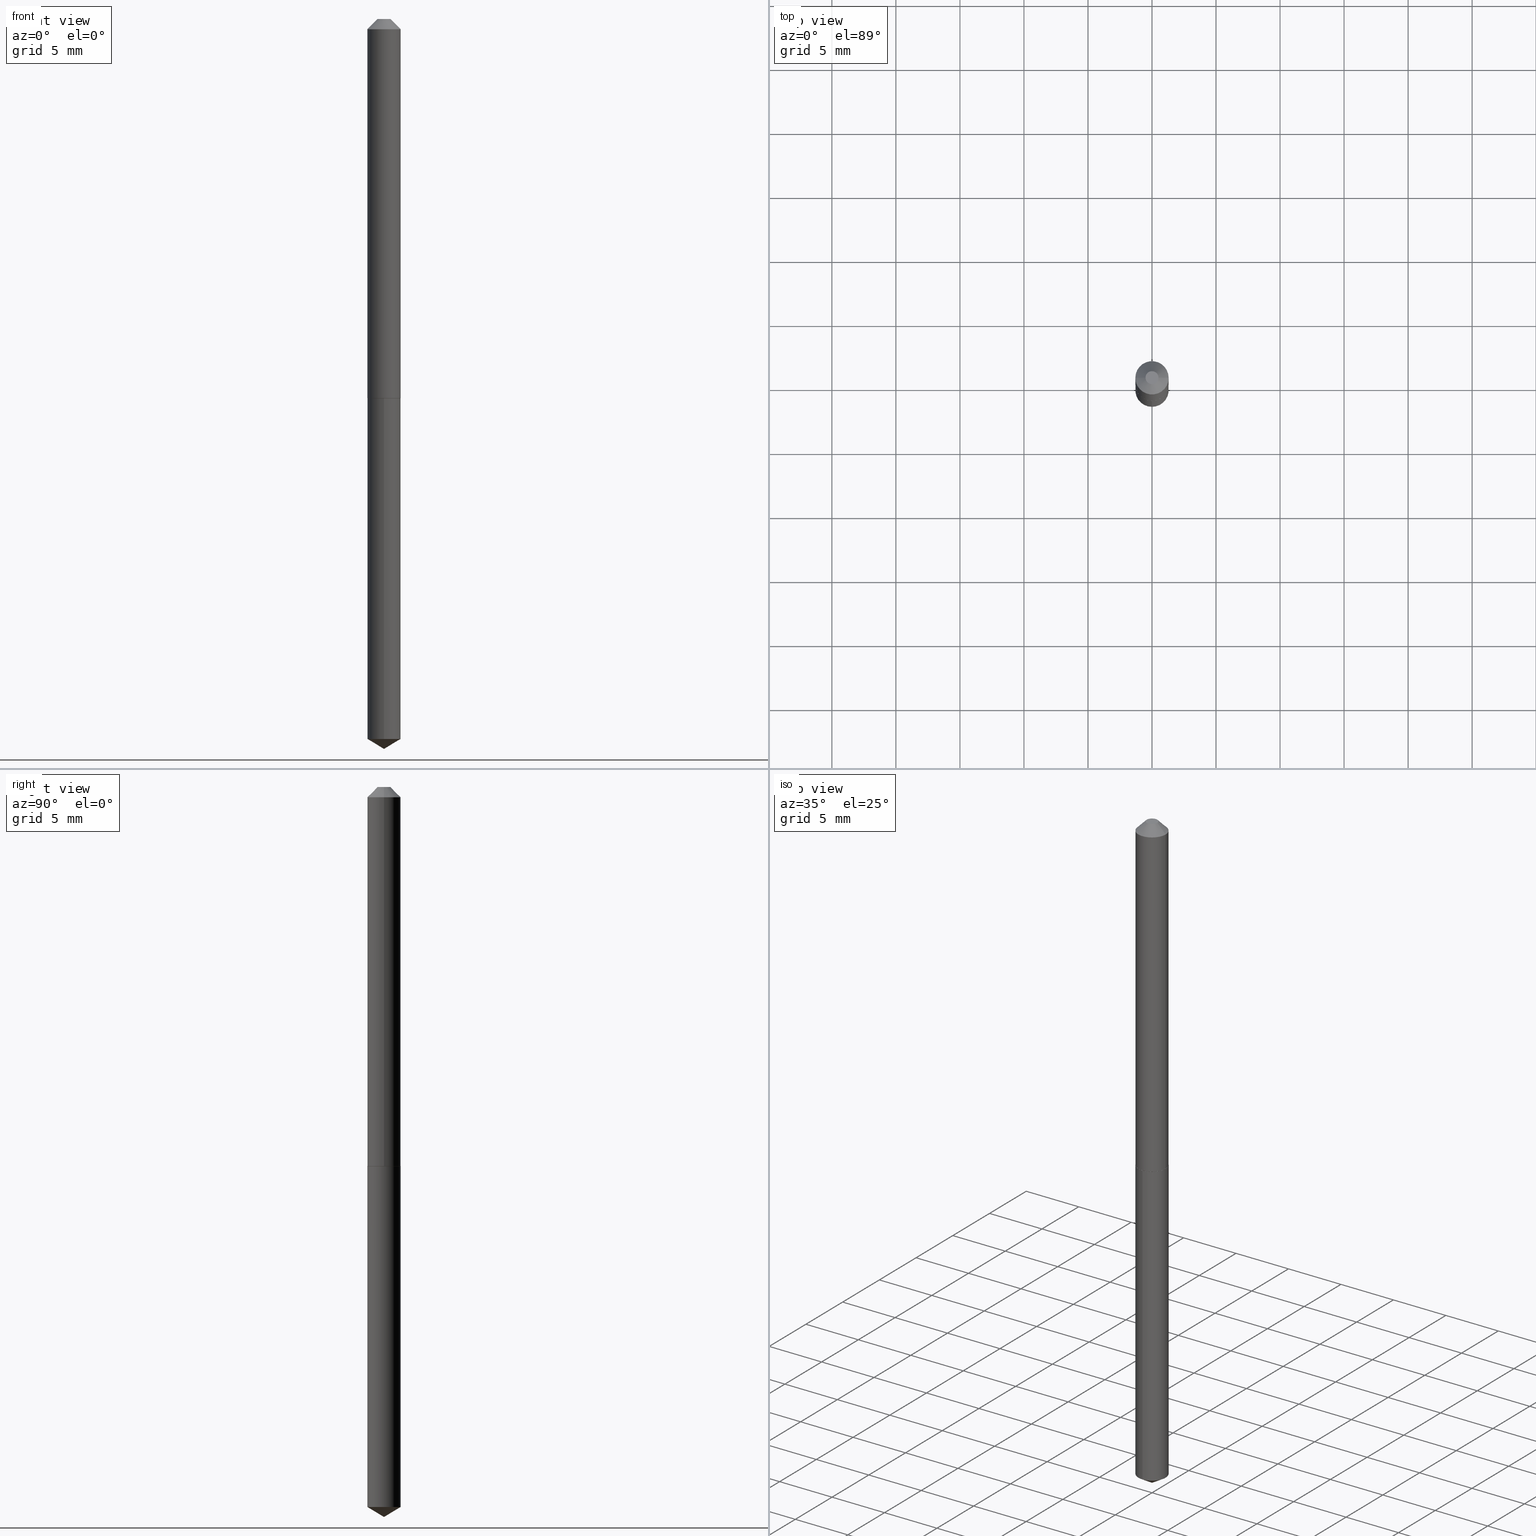
[diagram: canonical four-view strip — front | top / right | iso, engineering-drawing reading convention]
A machine part, canonical four-view strip (front | top / right | iso — engineering-drawing reading convention). The complete STEP part file that produces these views, byte-faithful:
ISO-10303-21;
HEADER;
FILE_DESCRIPTION (( 'STEP AP203' ),
    '1' );
FILE_NAME ('61064.STEP',
    '2024-04-23T03:01:24',
    ( '' ),
    ( '' ),
    'SwSTEP 2.0',
    'SolidWorks 2023',
    '' );
FILE_SCHEMA (( 'CONFIG_CONTROL_DESIGN' ));
ENDSEC;

DATA;
#1 = DIRECTION ( 'NONE',  ( -2.445446714774009337E-29, 3.491512975001244888E-15, 1.000000000000000000 ) ) ;
#2 = FACE_OUTER_BOUND ( 'NONE', #54, .T. ) ;
#3 = CARTESIAN_POINT ( 'NONE',  ( 5.487826972624354766E-29, -7.835304267200292570E-15, -2.244099999999999984 ) ) ;
#4 = AXIS2_PLACEMENT_3D ( 'NONE', #40, #203, #88 ) ;
#5 = AXIS2_PLACEMENT_3D ( 'NONE', #195, #150, #178 ) ;
#6 = CARTESIAN_POINT ( 'NONE',  ( 5.487878914797727803E-29, -7.835230529642994707E-15, -2.244099999999999984 ) ) ;
#7 = FACE_OUTER_BOUND ( 'NONE', #379, .T. ) ;
#8 = DATE_AND_TIME ( #121, #52 ) ;
#9 = DIRECTION ( 'NONE',  ( -0.7071067811865452413, 2.468850131082233000E-15, -0.7071067811865497932 ) ) ;
#10 = APPROVAL_STATUS ( 'not_yet_approved' ) ;
#11 = CIRCLE ( 'NONE', #224, 0.05120000000000001633 ) ;
#12 = COORDINATED_UNIVERSAL_TIME_OFFSET ( 5, 0, .BEHIND. ) ;
#13 = DIRECTION ( 'NONE',  ( -2.445468806185136877E-29, 3.491481338843145188E-15, 1.000000000000000000 ) ) ;
#14 = CARTESIAN_POINT ( 'NONE',  ( -1.182960040634186398E-47, 1.688953421129307900E-33, 4.837354856632054872E-19 ) ) ;
#15 = LENGTH_MEASURE_WITH_UNIT ( LENGTH_MEASURE( 0.02539999999999999897 ), #268 );
#16 = CARTESIAN_POINT ( 'NONE',  ( -0.05120000000000007184, 3.637978807091718056E-16, -2.518494766210515431E-30 ) ) ;
#17 = FACE_OUTER_BOUND ( 'NONE', #138, .T. ) ;
#18 = ORIENTED_EDGE ( 'NONE', *, *, #92, .T. ) ;
#19 = PERSON_AND_ORGANIZATION ( #323, #148 ) ;
#20 = CC_DESIGN_PERSON_AND_ORGANIZATION_ASSIGNMENT ( #47, #157, ( #164 ) ) ;
#21 = DIRECTION ( 'NONE',  ( -2.445468806185136597E-29, 3.491481338843145583E-15, 1.000000000000000000 ) ) ;
#22 = ORIENTED_EDGE ( 'NONE', *, *, #265, .F. ) ;
#23 = PERSON_AND_ORGANIZATION ( #323, #148 ) ;
#24 = CIRCLE ( 'NONE', #270, 0.05120000000000014123 ) ;
#25 = VERTEX_POINT ( 'NONE', #89 ) ;
#26 = ORIENTED_EDGE ( 'NONE', *, *, #385, .T. ) ;
#27 = EDGE_CURVE ( 'NONE', #79, #346, #382, .T. ) ;
#28 = ORIENTED_EDGE ( 'NONE', *, *, #104, .T. ) ;
#29 = PERSON_AND_ORGANIZATION ( #323, #148 ) ;
#30 = VECTOR ( 'NONE', #13, 39.37007874015748143 ) ;
#31 = COORDINATED_UNIVERSAL_TIME_OFFSET ( 5, 0, .BEHIND. ) ;
#32 = DIRECTION ( 'NONE',  ( -2.445446714774009337E-29, 3.491512975001244888E-15, 1.000000000000000000 ) ) ;
#33 = VECTOR ( 'NONE', #35, 39.37007874015748143 ) ;
#34 = LOCAL_TIME ( 23, 1, 24.00000000000000000, #31 ) ;
#35 = DIRECTION ( 'NONE',  ( -2.445446714774009617E-29, 3.491512975001244888E-15, 1.000000000000000000 ) ) ;
#36 = APPROVAL ( #10, 'UNSPECIFIED' ) ;
#37 = CIRCLE ( 'NONE', #295, 0.05070000000000022405 ) ;
#38 = APPROVAL_PERSON_ORGANIZATION ( #23, #248, #169 ) ;
#39 = DIRECTION ( 'NONE',  ( -2.445446714774009337E-29, 3.491512975001244888E-15, 1.000000000000000000 ) ) ;
#40 = CARTESIAN_POINT ( 'NONE',  ( 2.848726612325065508E-29, -4.067226611618379942E-15, -1.164899999999999824 ) ) ;
#41 = DIRECTION ( 'NONE',  ( 1.000000000000000000, -6.982962677686271444E-15, 0.000000000000000000 ) ) ;
#42 =( CONVERSION_BASED_UNIT ( 'INCH', #15 ) LENGTH_UNIT ( ) NAMED_UNIT ( #291 ) );
#43 = EDGE_CURVE ( 'NONE', #300, #108, #11, .T. ) ;
#44 = CARTESIAN_POINT ( 'NONE',  ( -3.575276890975083509E-16, -0.05120000000000407558, -1.165399999999999769 ) ) ;
#45 = CLOSED_SHELL ( 'NONE', ( #123, #284, #175, #229, #390, #297, #201, #307 ) ) ;
#46 = AXIS2_PLACEMENT_3D ( 'NONE', #206, #202, #325 ) ;
#47 = PERSON_AND_ORGANIZATION ( #323, #148 ) ;
#48 = CC_DESIGN_DATE_AND_TIME_ASSIGNMENT ( #93, #122, ( #274 ) ) ;
#49 = ORIENTED_EDGE ( 'NONE', *, *, #104, .F. ) ;
#50 = DIRECTION ( 'NONE',  ( -2.438088387897960049E-29, 3.491481338843145188E-15, 1.000000000000000000 ) ) ;
#51 = VERTEX_POINT ( 'NONE', #388 ) ;
#52 = LOCAL_TIME ( 23, 1, 24.00000000000000000, #12 ) ;
#53 = ORIENTED_EDGE ( 'NONE', *, *, #315, .T. ) ;
#54 = EDGE_LOOP ( 'NONE', ( #311, #260, #18, #200 ) ) ;
#55 = CARTESIAN_POINT ( 'NONE',  ( 2.849949346728157749E-29, -4.068972352287801446E-15, -1.165399999999999991 ) ) ;
#56 = COORDINATED_UNIVERSAL_TIME_OFFSET ( 5, 0, .BEHIND. ) ;
#57 = VECTOR ( 'NONE', #64, 39.37007874015748143 ) ;
#58 = AXIS2_PLACEMENT_3D ( 'NONE', #192, #312, #310 ) ;
#59 = EDGE_CURVE ( 'NONE', #133, #110, #319, .T. ) ;
#60 = FACE_OUTER_BOUND ( 'NONE', #275, .T. ) ;
#61 = VECTOR ( 'NONE', #9, 39.37007874015748143 ) ;
#62 = LOCAL_TIME ( 23, 1, 24.00000000000000000, #119 ) ;
#63 = ADVANCED_FACE ( 'NONE', ( #7 ), #266, .T. ) ;
#64 = DIRECTION ( 'NONE',  ( -2.445446714774009617E-29, 3.491512975001244888E-15, 1.000000000000000000 ) ) ;
#65 = CARTESIAN_POINT ( 'NONE',  ( 3.637978807091998102E-16, 0.05119999999999593626, -1.165399999999999991 ) ) ;
#66 = APPROVAL_DATE_TIME ( #8, #36 ) ;
#67 = CONICAL_SURFACE ( 'NONE', #112, 0.05120000000000001633, 0.7853981633974450594 ) ;
#68 = CARTESIAN_POINT ( 'NONE',  ( 2.849949346728158309E-29, -4.068972352287802235E-15, -1.165399999999999991 ) ) ;
#69 = PERSON_AND_ORGANIZATION ( #323, #148 ) ;
#70 = DIRECTION ( 'NONE',  ( -1.000000000000000000, 6.982962677686267499E-15, 0.000000000000000000 ) ) ;
#71 = CARTESIAN_POINT ( 'NONE',  ( -1.182960040634186398E-47, 1.688953421129307900E-33, 4.837354856632054872E-19 ) ) ;
#72 = CIRCLE ( 'NONE', #154, 0.01995000000000000592 ) ;
#73 = CC_DESIGN_SECURITY_CLASSIFICATION ( #257, ( #164 ) ) ;
#74 = EDGE_LOOP ( 'NONE', ( #166, #318, #221, #223 ) ) ;
#75 = PLANE ( 'NONE',  #5 ) ;
#76 = EDGE_LOOP ( 'NONE', ( #317, #77, #226, #90 ) ) ;
#77 = ORIENTED_EDGE ( 'NONE', *, *, #236, .T. ) ;
#78 = AXIS2_PLACEMENT_3D ( 'NONE', #330, #269, #336 ) ;
#79 = VERTEX_POINT ( 'NONE', #262 ) ;
#80 = EDGE_LOOP ( 'NONE', ( #26, #249, #49, #349 ) ) ;
#81 = LOCAL_TIME ( 23, 1, 24.00000000000000000, #342 ) ;
#82 = DIRECTION ( 'NONE',  ( 2.445446714774009057E-29, -3.491512975001244888E-15, -1.000000000000000000 ) ) ;
#83 = DIRECTION ( 'NONE',  ( 1.000000000000000000, -6.982962677686267499E-15, 0.000000000000000000 ) ) ;
#84 = LINE ( 'NONE', #6, #184 ) ;
#85 = EDGE_CURVE ( 'NONE', #282, #108, #171, .T. ) ;
#86 = FACE_OUTER_BOUND ( 'NONE', #74, .T. ) ;
#87 = DIRECTION ( 'NONE',  ( 6.982962677686265922E-15, 1.000000000000000000, -3.491512975001244888E-15 ) ) ;
#88 = DIRECTION ( 'NONE',  ( 1.000000000000000000, -6.982962677686273021E-15, 0.000000000000000000 ) ) ;
#89 = CARTESIAN_POINT ( 'NONE',  ( -0.01995000000000000592, 1.938645013392645287E-16, 4.837354856620407811E-19 ) ) ;
#90 = ORIENTED_EDGE ( 'NONE', *, *, #220, .F. ) ;
#91 = LINE ( 'NONE', #3, #230 ) ;
#92 = EDGE_CURVE ( 'NONE', #25, #300, #238, .T. ) ;
#93 = DATE_AND_TIME ( #369, #62 ) ;
#94 = CARTESIAN_POINT ( 'NONE',  ( 5.412620839460775275E-29, -7.727854270869542794E-15, -2.213335936305789176 ) ) ;
#95 = CIRCLE ( 'NONE', #316, 0.05120000000000000939 ) ;
#96 = DIRECTION ( 'NONE',  ( -6.982962677686265133E-15, -1.000000000000000000, 5.335640612625512847E-15 ) ) ;
#97 = DIRECTION ( 'NONE',  ( 1.000000000000000000, -6.982962677686271444E-15, 0.000000000000000000 ) ) ;
#98 = PERSON_AND_ORGANIZATION ( #323, #148 ) ;
#99 = CARTESIAN_POINT ( 'NONE',  ( -9.078957699755728806E-28, 1.296258733496588764E-13, 37.12597874015748545 ) ) ;
#100 = FACE_OUTER_BOUND ( 'NONE', #76, .T. ) ;
#101 = CC_DESIGN_PERSON_AND_ORGANIZATION_ASSIGNMENT ( #263, #337, ( #204 ) ) ;
#102 = AXIS2_PLACEMENT_3D ( 'NONE', #272, #159, #276 ) ;
#103 = VERTEX_POINT ( 'NONE', #386 ) ;
#104 = EDGE_CURVE ( 'NONE', #105, #110, #95, .T. ) ;
#105 = VERTEX_POINT ( 'NONE', #44 ) ;
#106 = AXIS2_PLACEMENT_3D ( 'NONE', #55, #181, #294 ) ;
#107 = ORIENTED_EDGE ( 'NONE', *, *, #59, .F. ) ;
#108 = VERTEX_POINT ( 'NONE', #306 ) ;
#109 = EDGE_CURVE ( 'NONE', #79, #345, #376, .T. ) ;
#110 = VERTEX_POINT ( 'NONE', #161 ) ;
#111 = CARTESIAN_POINT ( 'NONE',  ( -0.05120000000000001633, 2.484188972586879944E-16, -0.03125000000000020817 ) ) ;
#112 = AXIS2_PLACEMENT_3D ( 'NONE', #115, #233, #356 ) ;
#113 = CYLINDRICAL_SURFACE ( 'NONE', #46, 0.05120000000000000939 ) ;
#114 = DIRECTION ( 'NONE',  ( -6.982962677686265133E-15, -1.000000000000000000, 2.667820306312756424E-15 ) ) ;
#115 = CARTESIAN_POINT ( 'NONE',  ( 7.642090019328602662E-31, -1.091087918388490267E-16, -0.03125000000000020817 ) ) ;
#116 = APPROVAL_PERSON_ORGANIZATION ( #19, #36, #209 ) ;
#117 = EDGE_CURVE ( 'NONE', #282, #25, #72, .T. ) ;
#118 = DIRECTION ( 'NONE',  ( 0.7071067811865452413, -7.319954787623248157E-15, -0.7071067811865497932 ) ) ;
#119 = COORDINATED_UNIVERSAL_TIME_OFFSET ( 5, 0, .BEHIND. ) ;
#120 = PRODUCT_DEFINITION_SHAPE ( 'NONE', 'NONE',  #274 ) ;
#121 = CALENDAR_DATE ( 2024, 22, 4 ) ;
#122 = DATE_TIME_ROLE ( 'creation_date' ) ;
#123 = ADVANCED_FACE ( 'NONE', ( #17 ), #341, .T. ) ;
#124 = DIRECTION ( 'NONE',  ( 1.000000000000000000, 0.000000000000000000, 0.000000000000000000 ) ) ;
#125 = DIRECTION ( 'NONE',  ( -2.445468806185136877E-29, 3.491481338843145188E-15, 1.000000000000000000 ) ) ;
#126 = ORIENTED_EDGE ( 'NONE', *, *, #43, .F. ) ;
#127 =( NAMED_UNIT ( * ) PLANE_ANGLE_UNIT ( ) SI_UNIT ( $, .RADIAN. ) );
#128 = DIRECTION ( 'NONE',  ( -2.445468806185136597E-29, 3.491481338843145583E-15, 1.000000000000000000 ) ) ;
#129 = AXIS2_PLACEMENT_3D ( 'NONE', #301, #39, #96 ) ;
#130 = ORIENTED_EDGE ( 'NONE', *, *, #85, .T. ) ;
#131 = APPROVAL_STATUS ( 'not_yet_approved' ) ;
#132 = EDGE_CURVE ( 'NONE', #346, #103, #186, .T. ) ;
#133 = VERTEX_POINT ( 'NONE', #278 ) ;
#134 = PRODUCT_RELATED_PRODUCT_CATEGORY ( 'detail', '', ( #204 ) ) ;
#135 = ORIENTED_EDGE ( 'NONE', *, *, #344, .T. ) ;
#136 = DESIGN_CONTEXT ( 'detailed design', #139, 'design' ) ;
#137 = CONICAL_SURFACE ( 'NONE', #367, 65.52281426576932688, 1.029744258676660529 ) ;
#138 = EDGE_LOOP ( 'NONE', ( #380, #130, #254, #165 ) ) ;
#139 = APPLICATION_CONTEXT ( 'configuration controlled 3d designs of mechanical parts and assemblies' ) ;
#140 = DIRECTION ( 'NONE',  ( -2.445468806185136597E-29, 3.491481338843145583E-15, 1.000000000000000000 ) ) ;
#141 = EDGE_CURVE ( 'NONE', #346, #79, #37, .T. ) ;
#142 = AXIS2_PLACEMENT_3D ( 'NONE', #335, #302, #70 ) ;
#143 = AXIS2_PLACEMENT_3D ( 'NONE', #215, #50, #338 ) ;
#144 = DIRECTION ( 'NONE',  ( 6.090539988449802890E-15, 0.8571673007021172186, 0.5150380749100460509 ) ) ;
#145 = DIRECTION ( 'NONE',  ( -2.445468806185136597E-29, 3.491481338843145583E-15, 1.000000000000000000 ) ) ;
#146 = CC_DESIGN_PERSON_AND_ORGANIZATION_ASSIGNMENT ( #98, #303, ( #164 ) ) ;
#147 = AXIS2_PLACEMENT_3D ( 'NONE', #259, #1, #114 ) ;
#148 = ORGANIZATION ( 'UNSPECIFIED', 'UNSPECIFIED', '' ) ;
#149 = APPLICATION_PROTOCOL_DEFINITION ( 'international standard', 'config_control_design', 1994, #387 ) ;
#150 = DIRECTION ( 'NONE',  ( 2.438088387897960049E-29, -3.491481338843145188E-15, -1.000000000000000000 ) ) ;
#151 = DIRECTION ( 'NONE',  ( 1.000000000000000000, -6.982962677686267499E-15, 0.000000000000000000 ) ) ;
#152 = CARTESIAN_POINT ( 'NONE',  ( -0.05120000000000014123, -3.703428730909207693E-15, -1.164899999999999824 ) ) ;
#153 = DATE_AND_TIME ( #185, #81 ) ;
#154 = AXIS2_PLACEMENT_3D ( 'NONE', #14, #313, #196 ) ;
#155 = APPROVAL_PERSON_ORGANIZATION ( #69, #360, #333 ) ;
#156 = ADVANCED_FACE ( 'NONE', ( #214 ), #137, .T. ) ;
#157 = PERSON_AND_ORGANIZATION_ROLE ( 'design_supplier' ) ;
#158 = EDGE_LOOP ( 'NONE', ( #225, #343, #362, #126 ) ) ;
#159 = DIRECTION ( 'NONE',  ( -2.445468806185136597E-29, 3.491481338843145583E-15, 1.000000000000000000 ) ) ;
#160 = FACE_OUTER_BOUND ( 'NONE', #158, .T. ) ;
#161 = CARTESIAN_POINT ( 'NONE',  ( 3.637978807092255468E-16, 0.05119999999999593626, -1.165399999999999991 ) ) ;
#162 = ORIENTED_EDGE ( 'NONE', *, *, #265, .T. ) ;
#163 = DIRECTION ( 'NONE',  ( -6.982962677686265133E-15, -1.000000000000000000, 2.667820306312756424E-15 ) ) ;
#164 = PRODUCT_DEFINITION_FORMATION_WITH_SPECIFIED_SOURCE ( 'ANY', '', #204, .NOT_KNOWN. ) ;
#165 = ORIENTED_EDGE ( 'NONE', *, *, #92, .F. ) ;
#166 = ORIENTED_EDGE ( 'NONE', *, *, #27, .T. ) ;
#167 = DATE_AND_TIME ( #173, #292 ) ;
#168 = ORIENTED_EDGE ( 'NONE', *, *, #132, .F. ) ;
#169 = APPROVAL_ROLE ( '' ) ;
#170 = EDGE_CURVE ( 'NONE', #25, #282, #357, .T. ) ;
#171 = LINE ( 'NONE', #256, #246 ) ;
#172 = AXIS2_PLACEMENT_3D ( 'NONE', #290, #82, #87 ) ;
#173 = CALENDAR_DATE ( 2024, 22, 4 ) ;
#174 = CARTESIAN_POINT ( 'NONE',  ( 7.642090019328602662E-31, -1.091087918388490267E-16, -0.03125000000000020817 ) ) ;
#175 = ADVANCED_FACE ( 'NONE', ( #86 ), #198, .T. ) ;
#176 = CIRCLE ( 'NONE', #261, 0.05120000000000001633 ) ;
#177 = LINE ( 'NONE', #293, #33 ) ;
#178 = DIRECTION ( 'NONE',  ( -1.000000000000000000, 6.982962677686265922E-15, -4.876176775795935793E-29 ) ) ;
#179 = EDGE_CURVE ( 'NONE', #345, #103, #280, .T. ) ;
#180 = CARTESIAN_POINT ( 'NONE',  ( 2.848726612325065508E-29, -4.067226611618379942E-15, -1.164899999999999824 ) ) ;
#181 = DIRECTION ( 'NONE',  ( -2.445446714774009337E-29, 3.491512975001244888E-15, 1.000000000000000000 ) ) ;
#182 = ORIENTED_EDGE ( 'NONE', *, *, #141, .T. ) ;
#183 = DIRECTION ( 'NONE',  ( 0.000000000000000000, 0.000000000000000000, 1.000000000000000000 ) ) ;
#184 = VECTOR ( 'NONE', #144, 39.37007874015748143 ) ;
#185 = CALENDAR_DATE ( 2024, 22, 4 ) ;
#186 = LINE ( 'NONE', #152, #205 ) ;
#187 = MECHANICAL_CONTEXT ( 'NONE', #387, 'mechanical' ) ;
#188 = EDGE_CURVE ( 'NONE', #110, #105, #320, .T. ) ;
#189 = PERSON_AND_ORGANIZATION ( #323, #148 ) ;
#190 = AXIS2_PLACEMENT_3D ( 'NONE', #71, #145, #258 ) ;
#191 = FACE_OUTER_BOUND ( 'NONE', #332, .T. ) ;
#192 = CARTESIAN_POINT ( 'NONE',  ( 0.000000000000000000, 0.000000000000000000, 0.000000000000000000 ) ) ;
#193 = EDGE_CURVE ( 'NONE', #51, #105, #177, .T. ) ;
#194 = ORIENTED_EDGE ( 'NONE', *, *, #188, .F. ) ;
#195 = CARTESIAN_POINT ( 'NONE',  ( -5.914800203170931988E-48, 8.444767105646539499E-34, 2.418677428316027436E-19 ) ) ;
#196 = DIRECTION ( 'NONE',  ( 1.000000000000000000, -6.982962677686266711E-15, 4.876182450887180427E-29 ) ) ;
#197 = ORIENTED_EDGE ( 'NONE', *, *, #315, .F. ) ;
#198 = CONICAL_SURFACE ( 'NONE', #4, 0.05120000000000014123, 0.7853981633971921505 ) ;
#199 = ORIENTED_EDGE ( 'NONE', *, *, #385, .F. ) ;
#200 = ORIENTED_EDGE ( 'NONE', *, *, #43, .T. ) ;
#201 = ADVANCED_FACE ( 'NONE', ( #2 ), #67, .T. ) ;
#202 = DIRECTION ( 'NONE',  ( -2.445446714774009337E-29, 3.491512975001244888E-15, 1.000000000000000000 ) ) ;
#203 = DIRECTION ( 'NONE',  ( -2.445468806185136597E-29, 3.491481338843145583E-15, 1.000000000000000000 ) ) ;
#204 = PRODUCT ( '61064', '61064', '', ( #187 ) ) ;
#205 = VECTOR ( 'NONE', #240, 39.37007874015748143 ) ;
#206 = CARTESIAN_POINT ( 'NONE',  ( 2.849949346728157749E-29, -4.068972352287801446E-15, -1.165399999999999991 ) ) ;
#207 = CC_DESIGN_PERSON_AND_ORGANIZATION_ASSIGNMENT ( #189, #298, ( #274 ) ) ;
#208 = DIRECTION ( 'NONE',  ( -2.445468806185136597E-29, 3.491481338843145583E-15, 1.000000000000000000 ) ) ;
#209 = APPROVAL_ROLE ( '' ) ;
#210 = APPROVAL_STATUS ( 'not_yet_approved' ) ;
#211 = AXIS2_PLACEMENT_3D ( 'NONE', #267, #183, #124 ) ;
#212 = ADVANCED_FACE ( 'NONE', ( #328 ), #321, .T. ) ;
#213 =( NAMED_UNIT ( * ) SI_UNIT ( $, .STERADIAN. ) SOLID_ANGLE_UNIT ( ) );
#214 = FACE_OUTER_BOUND ( 'NONE', #285, .T. ) ;
#215 = CARTESIAN_POINT ( 'NONE',  ( 6.574811106585889741E-30, -7.208711653881809431E-15, -1.165399999999999991 ) ) ;
#216 = DIRECTION ( 'NONE',  ( -2.445446714774009337E-29, 3.491512975001244888E-15, 1.000000000000000000 ) ) ;
#217 = SECURITY_CLASSIFICATION_LEVEL ( 'unclassified' ) ;
#218 = CYLINDRICAL_SURFACE ( 'NONE', #58, 0.05120000000000007184 ) ;
#219 = AXIS2_PLACEMENT_3D ( 'NONE', #334, #128, #245 ) ;
#220 = EDGE_CURVE ( 'NONE', #345, #108, #239, .T. ) ;
#221 = ORIENTED_EDGE ( 'NONE', *, *, #179, .F. ) ;
#222 = FACE_OUTER_BOUND ( 'NONE', #286, .T. ) ;
#223 = ORIENTED_EDGE ( 'NONE', *, *, #109, .F. ) ;
#224 = AXIS2_PLACEMENT_3D ( 'NONE', #174, #208, #151 ) ;
#225 = ORIENTED_EDGE ( 'NONE', *, *, #236, .F. ) ;
#226 = ORIENTED_EDGE ( 'NONE', *, *, #377, .F. ) ;
#227 = ORIENTED_EDGE ( 'NONE', *, *, #193, .T. ) ;
#228 = MANIFOLD_SOLID_BREP ( 'Body-Move/Copy2[2]', #45 ) ;
#229 = ADVANCED_FACE ( 'NONE', ( #264 ), #241, .F. ) ;
#230 = VECTOR ( 'NONE', #235, 39.37007874015748143 ) ;
#231 = DIRECTION ( 'NONE',  ( -2.445468806185136597E-29, 3.491481338843145583E-15, 1.000000000000000000 ) ) ;
#232 = DIRECTION ( 'NONE',  ( -2.445468806185136597E-29, 3.491481338843145583E-15, 1.000000000000000000 ) ) ;
#233 = DIRECTION ( 'NONE',  ( 2.445468806185136597E-29, -3.491481338843145583E-15, -1.000000000000000000 ) ) ;
#234 = CIRCLE ( 'NONE', #129, 0.05120000000000000939 ) ;
#235 = DIRECTION ( 'NONE',  ( -5.985567269335965734E-15, -0.8571673007021136659, 0.5150380749100520461 ) ) ;
#236 = EDGE_CURVE ( 'NONE', #103, #300, #273, .T. ) ;
#237 = DIRECTION ( 'NONE',  ( -2.445468806185136597E-29, 3.491481338843145583E-15, 1.000000000000000000 ) ) ;
#238 = LINE ( 'NONE', #111, #61 ) ;
#239 = LINE ( 'NONE', #305, #30 ) ;
#240 = DIRECTION ( 'NONE',  ( -0.7071067811863663843, 7.493145998869699406E-15, 0.7071067811867286501 ) ) ;
#241 = PLANE ( 'NONE',  #143 ) ;
#242 = DIRECTION ( 'NONE',  ( -6.982962677686265133E-15, -1.000000000000000000, 5.335640612625512847E-15 ) ) ;
#243 = CARTESIAN_POINT ( 'NONE',  ( 2.849949346728158309E-29, -4.068972352287802235E-15, -1.165399999999999991 ) ) ;
#244 = ORIENTED_EDGE ( 'NONE', *, *, #27, .F. ) ;
#245 = DIRECTION ( 'NONE',  ( 1.000000000000000000, -6.982962677686266711E-15, 4.876176775795936353E-29 ) ) ;
#246 = VECTOR ( 'NONE', #118, 39.37007874015748143 ) ;
#247 = CC_DESIGN_APPROVAL ( #36, ( #274 ) ) ;
#248 = APPROVAL ( #131, 'UNSPECIFIED' ) ;
#249 = ORIENTED_EDGE ( 'NONE', *, *, #59, .T. ) ;
#250 = DATE_TIME_ROLE ( 'classification_date' ) ;
#251 = ORIENTED_EDGE ( 'NONE', *, *, #109, .T. ) ;
#252 = CALENDAR_DATE ( 2024, 22, 4 ) ;
#253 = EDGE_LOOP ( 'NONE', ( #197, #135, #22 ) ) ;
#254 = ORIENTED_EDGE ( 'NONE', *, *, #377, .T. ) ;
#255 = DATE_AND_TIME ( #252, #34 ) ;
#256 = CARTESIAN_POINT ( 'NONE',  ( 0.05120000000000001633, -4.603662893247515343E-16, -0.03125000000000020817 ) ) ;
#257 = SECURITY_CLASSIFICATION ( '', '', #217 ) ;
#258 = DIRECTION ( 'NONE',  ( 1.000000000000000000, -6.982962677686266711E-15, 4.876182450887180427E-29 ) ) ;
#259 = CARTESIAN_POINT ( 'NONE',  ( 2.849949346728157749E-29, -4.068972352287801446E-15, -1.165399999999999991 ) ) ;
#260 = ORIENTED_EDGE ( 'NONE', *, *, #170, .F. ) ;
#261 = AXIS2_PLACEMENT_3D ( 'NONE', #354, #231, #83 ) ;
#262 = CARTESIAN_POINT ( 'NONE',  ( 0.05070000000000022405, -4.423008560046498147E-15, -1.165399999999999991 ) ) ;
#263 = PERSON_AND_ORGANIZATION ( #323, #148 ) ;
#264 = FACE_OUTER_BOUND ( 'NONE', #373, .T. ) ;
#265 = EDGE_CURVE ( 'NONE', #133, #51, #304, .T. ) ;
#266 = CYLINDRICAL_SURFACE ( 'NONE', #106, 0.05120000000000000939 ) ;
#267 = CARTESIAN_POINT ( 'NONE',  ( 0.000000000000000000, 0.000000000000000000, 0.000000000000000000 ) ) ;
#268 =( LENGTH_UNIT ( ) NAMED_UNIT ( * ) SI_UNIT ( $, .METRE. ) );
#269 = DIRECTION ( 'NONE',  ( -2.445446714774009337E-29, 3.491512975001244888E-15, 1.000000000000000000 ) ) ;
#270 = AXIS2_PLACEMENT_3D ( 'NONE', #180, #237, #355 ) ;
#271 = DIRECTION ( 'NONE',  ( 0.7071067811863663843, -2.468850131080359456E-15, 0.7071067811867286501 ) ) ;
#272 = CARTESIAN_POINT ( 'NONE',  ( 2.848726612325065508E-29, -4.067226611618379942E-15, -1.164899999999999824 ) ) ;
#273 = LINE ( 'NONE', #16, #368 ) ;
#274 = PRODUCT_DEFINITION ( 'UNKNOWN', '', #164, #136 ) ;
#275 = EDGE_LOOP ( 'NONE', ( #28, #279 ) ) ;
#276 = DIRECTION ( 'NONE',  ( 1.000000000000000000, -6.982962677686273021E-15, 0.000000000000000000 ) ) ;
#277 = CYLINDRICAL_SURFACE ( 'NONE', #219, 0.05120000000000007184 ) ;
#278 = CARTESIAN_POINT ( 'NONE',  ( 3.637978807092252510E-16, 0.05119999999999226559, -2.213335936305789620 ) ) ;
#279 = ORIENTED_EDGE ( 'NONE', *, *, #188, .T. ) ;
#280 = CIRCLE ( 'NONE', #287, 0.05120000000000014123 ) ;
#281 = CARTESIAN_POINT ( 'NONE',  ( 0.05120000000000014123, -4.424754300715918073E-15, -1.164899999999999824 ) ) ;
#282 = VERTEX_POINT ( 'NONE', #372 ) ;
#283 = SHAPE_DEFINITION_REPRESENTATION ( #120, #383 ) ;
#284 = ADVANCED_FACE ( 'NONE', ( #100 ), #218, .T. ) ;
#285 = EDGE_LOOP ( 'NONE', ( #314, #53, #199 ) ) ;
#286 = EDGE_LOOP ( 'NONE', ( #384, #361 ) ) ;
#287 = AXIS2_PLACEMENT_3D ( 'NONE', #299, #232, #326 ) ;
#288 = CONICAL_SURFACE ( 'NONE', #102, 0.05120000000000014123, 0.7853981633971921505 ) ;
#289 = CARTESIAN_POINT ( 'NONE',  ( 2.849949346728157749E-29, -4.068972352287801446E-15, -1.165399999999999991 ) ) ;
#290 = CARTESIAN_POINT ( 'NONE',  ( 2.849949346728157749E-29, -4.068972352287801446E-15, -1.165399999999999991 ) ) ;
#291 = DIMENSIONAL_EXPONENTS ( 1.000000000000000000, 0.000000000000000000, 0.000000000000000000, 0.000000000000000000, 0.000000000000000000, 0.000000000000000000, 0.000000000000000000 ) ;
#292 = LOCAL_TIME ( 23, 1, 24.00000000000000000, #56 ) ;
#293 = CARTESIAN_POINT ( 'NONE',  ( -3.575276890975083509E-16, -0.05120000000000407558, -1.165399999999999769 ) ) ;
#294 = DIRECTION ( 'NONE',  ( -6.982962677686265133E-15, -1.000000000000000000, 2.667820306312756424E-15 ) ) ;
#295 = AXIS2_PLACEMENT_3D ( 'NONE', #243, #21, #97 ) ;
#296 = CC_DESIGN_APPROVAL ( #248, ( #257 ) ) ;
#297 = ADVANCED_FACE ( 'NONE', ( #160 ), #277, .T. ) ;
#298 = PERSON_AND_ORGANIZATION_ROLE ( 'creator' ) ;
#299 = CARTESIAN_POINT ( 'NONE',  ( 2.848726612325065508E-29, -4.067226611618379942E-15, -1.164899999999999824 ) ) ;
#300 = VERTEX_POINT ( 'NONE', #375 ) ;
#301 = CARTESIAN_POINT ( 'NONE',  ( 5.412620839460775275E-29, -7.727854270869542794E-15, -2.213335936305789176 ) ) ;
#302 = DIRECTION ( 'NONE',  ( 2.445468806185136597E-29, -3.491481338843145583E-15, -1.000000000000000000 ) ) ;
#303 = PERSON_AND_ORGANIZATION_ROLE ( 'creator' ) ;
#304 = CIRCLE ( 'NONE', #374, 0.05120000000000000939 ) ;
#305 = CARTESIAN_POINT ( 'NONE',  ( 0.05120000000000007184, -3.575276890975373415E-16, 2.496602509207522887E-30 ) ) ;
#306 = CARTESIAN_POINT ( 'NONE',  ( 0.05120000000000001633, -4.666364809363860477E-16, -0.03125000000000020817 ) ) ;
#307 = ADVANCED_FACE ( 'NONE', ( #222 ), #75, .F. ) ;
#308 = ORIENTED_EDGE ( 'NONE', *, *, #141, .F. ) ;
#309 = CARTESIAN_POINT ( 'NONE',  ( 5.487826972624353645E-29, -7.835304267200294148E-15, -2.244099999999999984 ) ) ;
#310 = DIRECTION ( 'NONE',  ( 1.000000000000000000, -6.982962677686266711E-15, 4.876176775795936353E-29 ) ) ;
#311 = ORIENTED_EDGE ( 'NONE', *, *, #85, .F. ) ;
#312 = DIRECTION ( 'NONE',  ( -2.445468806185136597E-29, 3.491481338843145583E-15, 1.000000000000000000 ) ) ;
#313 = DIRECTION ( 'NONE',  ( -2.445468806185136597E-29, 3.491481338843145583E-15, 1.000000000000000000 ) ) ;
#314 = ORIENTED_EDGE ( 'NONE', *, *, #344, .F. ) ;
#315 = EDGE_CURVE ( 'NONE', #378, #133, #84, .T. ) ;
#316 = AXIS2_PLACEMENT_3D ( 'NONE', #289, #32, #163 ) ;
#317 = ORIENTED_EDGE ( 'NONE', *, *, #179, .T. ) ;
#318 = ORIENTED_EDGE ( 'NONE', *, *, #132, .T. ) ;
#319 = LINE ( 'NONE', #65, #57 ) ;
#320 = CIRCLE ( 'NONE', #147, 0.05120000000000000939 ) ;
#321 = CONICAL_SURFACE ( 'NONE', #78, 65.52281426576932688, 1.029744258676660529 ) ;
#322 = CC_DESIGN_DATE_AND_TIME_ASSIGNMENT ( #255, #250, ( #257 ) ) ;
#323 = PERSON ( 'UNSPECIFIED', 'UNSPECIFIED', 'UNSPECIFIED', ('UNSPECIFIED'), ('UNSPECIFIED'), ('UNSPECIFIED') ) ;
#324 = CARTESIAN_POINT ( 'NONE',  ( -0.05070000000000022405, -3.706077958083318894E-15, -1.165399999999999991 ) ) ;
#325 = DIRECTION ( 'NONE',  ( -6.982962677686265133E-15, -1.000000000000000000, 2.667820306312756424E-15 ) ) ;
#326 = DIRECTION ( 'NONE',  ( 1.000000000000000000, -6.982962677686273021E-15, 0.000000000000000000 ) ) ;
#327 = AXIS2_PLACEMENT_3D ( 'NONE', #68, #140, #41 ) ;
#328 = FACE_OUTER_BOUND ( 'NONE', #253, .T. ) ;
#329 = FACE_OUTER_BOUND ( 'NONE', #80, .T. ) ;
#330 = CARTESIAN_POINT ( 'NONE',  ( -9.078957699755728806E-28, 1.296258733496588764E-13, 37.12597874015748545 ) ) ;
#331 = CC_DESIGN_PERSON_AND_ORGANIZATION_ASSIGNMENT ( #29, #381, ( #257 ) ) ;
#332 = EDGE_LOOP ( 'NONE', ( #168, #182, #251, #351 ) ) ;
#333 = APPROVAL_ROLE ( '' ) ;
#334 = CARTESIAN_POINT ( 'NONE',  ( 0.000000000000000000, 0.000000000000000000, 0.000000000000000000 ) ) ;
#335 = CARTESIAN_POINT ( 'NONE',  ( 7.642090019328602662E-31, -1.091087918388490267E-16, -0.03125000000000020817 ) ) ;
#336 = DIRECTION ( 'NONE',  ( -6.982962677686264344E-15, -1.000000000000000000, 3.468864327941546883E-15 ) ) ;
#337 = PERSON_AND_ORGANIZATION_ROLE ( 'design_owner' ) ;
#338 = DIRECTION ( 'NONE',  ( 1.000000000000000000, -6.982962677686265922E-15, 4.876176775795935793E-29 ) ) ;
#339 = EDGE_CURVE ( 'NONE', #103, #345, #24, .T. ) ;
#340 = DIRECTION ( 'NONE',  ( -6.982962677686264344E-15, -1.000000000000000000, 3.468864327941546883E-15 ) ) ;
#341 = CONICAL_SURFACE ( 'NONE', #142, 0.05120000000000001633, 0.7853981633974450594 ) ;
#342 = COORDINATED_UNIVERSAL_TIME_OFFSET ( 5, 0, .BEHIND. ) ;
#343 = ORIENTED_EDGE ( 'NONE', *, *, #339, .T. ) ;
#344 = EDGE_CURVE ( 'NONE', #378, #51, #91, .T. ) ;
#345 = VERTEX_POINT ( 'NONE', #363 ) ;
#346 = VERTEX_POINT ( 'NONE', #324 ) ;
#347 = UNCERTAINTY_MEASURE_WITH_UNIT (LENGTH_MEASURE( 1.000000000000000082E-05 ), #42, 'distance_accuracy_value', 'NONE');
#348 =( GEOMETRIC_REPRESENTATION_CONTEXT ( 3 ) GLOBAL_UNCERTAINTY_ASSIGNED_CONTEXT ( ( #347 ) ) GLOBAL_UNIT_ASSIGNED_CONTEXT ( ( #42, #127, #213 ) ) REPRESENTATION_CONTEXT ( 'NONE', 'WORKASPACE' ) );
#349 = ORIENTED_EDGE ( 'NONE', *, *, #193, .F. ) ;
#350 = APPROVAL_DATE_TIME ( #167, #248 ) ;
#351 = ORIENTED_EDGE ( 'NONE', *, *, #339, .F. ) ;
#352 = CLOSED_SHELL ( 'NONE', ( #370, #156, #212, #63, #353 ) ) ;
#353 = ADVANCED_FACE ( 'NONE', ( #60 ), #359, .F. ) ;
#354 = CARTESIAN_POINT ( 'NONE',  ( 7.642090019328602662E-31, -1.091087918388490267E-16, -0.03125000000000020817 ) ) ;
#355 = DIRECTION ( 'NONE',  ( 1.000000000000000000, -6.982962677686273021E-15, 0.000000000000000000 ) ) ;
#356 = DIRECTION ( 'NONE',  ( -1.000000000000000000, 6.982962677686267499E-15, 0.000000000000000000 ) ) ;
#357 = CIRCLE ( 'NONE', #190, 0.01995000000000000592 ) ;
#358 = CC_DESIGN_APPROVAL ( #360, ( #164 ) ) ;
#359 = PLANE ( 'NONE',  #172 ) ;
#360 = APPROVAL ( #210, 'UNSPECIFIED' ) ;
#361 = ORIENTED_EDGE ( 'NONE', *, *, #117, .T. ) ;
#362 = ORIENTED_EDGE ( 'NONE', *, *, #220, .T. ) ;
#363 = CARTESIAN_POINT ( 'NONE',  ( 0.05120000000000014123, -4.424754300715918073E-15, -1.164899999999999824 ) ) ;
#364 = MANIFOLD_SOLID_BREP ( 'Body-Move/Copy2[1]', #352 ) ;
#365 = APPLICATION_PROTOCOL_DEFINITION ( 'international standard', 'config_control_design', 1994, #139 ) ;
#366 = DIRECTION ( 'NONE',  ( -2.445446714774009337E-29, 3.491512975001244888E-15, 1.000000000000000000 ) ) ;
#367 = AXIS2_PLACEMENT_3D ( 'NONE', #99, #216, #340 ) ;
#368 = VECTOR ( 'NONE', #125, 39.37007874015748143 ) ;
#369 = CALENDAR_DATE ( 2024, 22, 4 ) ;
#370 = ADVANCED_FACE ( 'NONE', ( #329 ), #113, .T. ) ;
#371 = APPROVAL_DATE_TIME ( #153, #360 ) ;
#372 = CARTESIAN_POINT ( 'NONE',  ( 0.01995000000000000592, -2.986166121901468526E-16, 4.837354856647359274E-19 ) ) ;
#373 = EDGE_LOOP ( 'NONE', ( #244, #308 ) ) ;
#374 = AXIS2_PLACEMENT_3D ( 'NONE', #94, #366, #242 ) ;
#375 = CARTESIAN_POINT ( 'NONE',  ( -0.05120000000000001633, -1.724369821019441680E-15, -0.03125000000000020817 ) ) ;
#376 = LINE ( 'NONE', #281, #389 ) ;
#377 = EDGE_CURVE ( 'NONE', #108, #300, #176, .T. ) ;
#378 = VERTEX_POINT ( 'NONE', #309 ) ;
#379 = EDGE_LOOP ( 'NONE', ( #107, #162, #227, #194 ) ) ;
#380 = ORIENTED_EDGE ( 'NONE', *, *, #117, .F. ) ;
#381 = PERSON_AND_ORGANIZATION_ROLE ( 'classification_officer' ) ;
#382 = CIRCLE ( 'NONE', #327, 0.05070000000000022405 ) ;
#383 = ADVANCED_BREP_SHAPE_REPRESENTATION ( '61064', ( #364, #228, #211 ), #348 ) ;
#384 = ORIENTED_EDGE ( 'NONE', *, *, #170, .T. ) ;
#385 = EDGE_CURVE ( 'NONE', #51, #133, #234, .T. ) ;
#386 = CARTESIAN_POINT ( 'NONE',  ( -0.05120000000000014123, -3.703428730909207693E-15, -1.164899999999999824 ) ) ;
#387 = APPLICATION_CONTEXT ( 'configuration controlled 3d designs of mechanical parts and assemblies' ) ;
#388 = CARTESIAN_POINT ( 'NONE',  ( -3.575276890974827129E-16, -0.05120000000000772544, -2.213335936305789176 ) ) ;
#389 = VECTOR ( 'NONE', #271, 39.37007874015748143 ) ;
#390 = ADVANCED_FACE ( 'NONE', ( #191 ), #288, .T. ) ;
ENDSEC;
END-ISO-10303-21;
